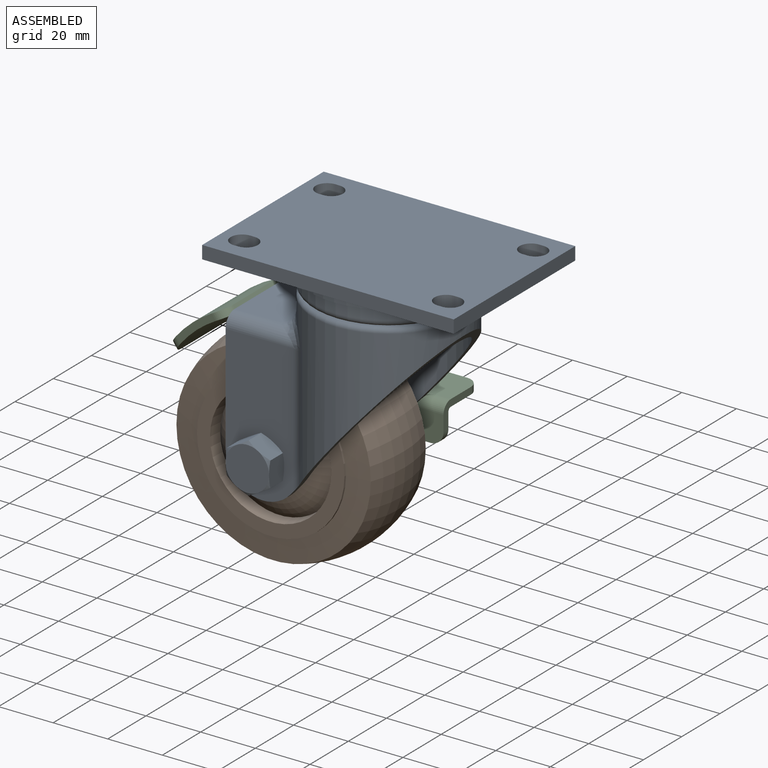
[diagram: assembled view]
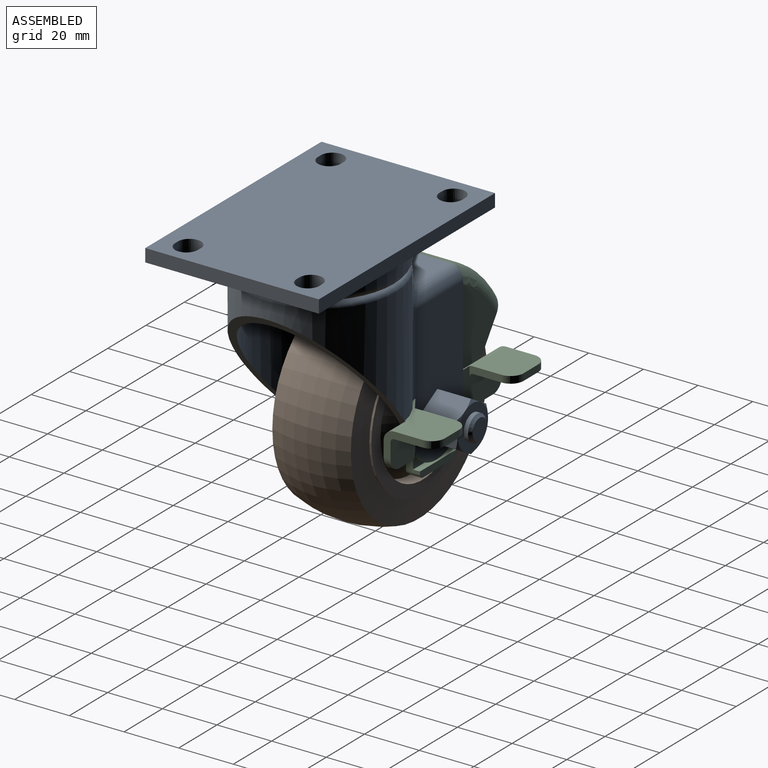
[diagram: assembled view, second angle]
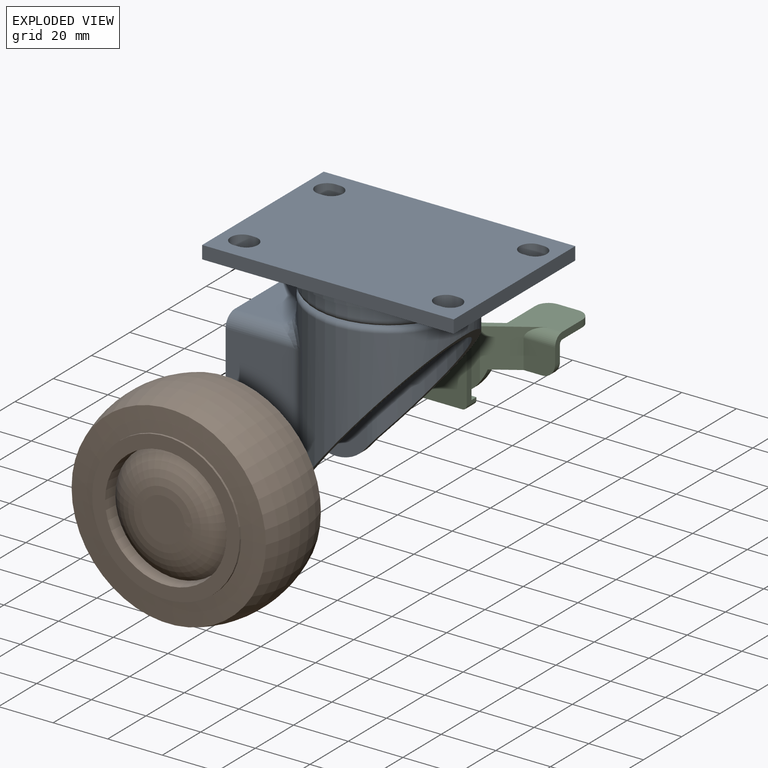
[diagram: exploded view]
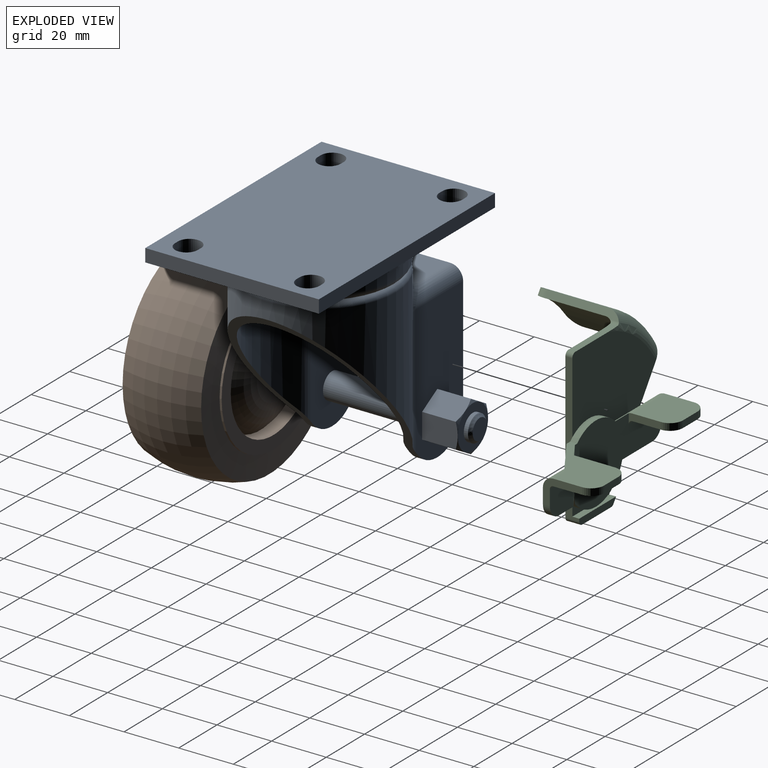
[diagram: exploded view, second angle]
ASSEMBLY  parts=3 mates=2
PART A: 91 faces, bbox 93.3x69.2x86.2 mm
  f0: torus R=25.41mm, axis (0,0,-1), area 630.9mm2, adj f1,f41
  f1: cylinder r=27.78mm len=55.56mm, axis (0,0,1), area 692.5mm2, adj f0,f90
  f2: cylinder r=28.54mm len=57.09mm, axis (0,0,1), area 570.8mm2, adj f68,f90
  f3: cone r=4.76mm half-angle=45deg, axis (0,-1,0), area 38.4mm2, adj f5,f67
  f4: cylinder r=4.76mm len=35.72mm, axis (0,-1,0), area 1068.8mm2, adj f55,f58
  f5: cylinder r=4.76mm len=9.53mm, axis (0,-1,0), area 45.6mm2, adj f3,f66
  f6: cylinder r=25mm len=56.24mm, axis (0,0,1), area 3413.6mm2, adj f48,f49,f50,f51,f52,f54,f57
  f7: torus R=25.8mm, axis (0,0,-1), area 529.1mm2, adj f8,f41
  f8: cylinder r=27.78mm len=59.08mm, axis (0,0,1), area 3788.7mm2, adj f7,f38,f40,f42,f43,f44,f48
  f9: plane 8.69x8.69mm, normal (-0.5,0,0.87), area 68.3mm2, adj f10,f14,f18,f19,f25,f26
  f10: plane 9.92x8.69mm, normal (-1,0,0), area 68.3mm2, adj f9,f11,f17,f18,f24,f25
  f11: plane 8.69x8.69mm, normal (-0.5,0,-0.87), area 68.3mm2, adj f10,f12,f16,f17,f23,f24
  f12: plane 8.69x8.69mm, normal (0.5,0,-0.87), area 68.3mm2, adj f11,f13,f15,f16,f22,f23
  f13: plane 9.92x8.69mm, normal (1,0,0), area 68.3mm2, adj f12,f14,f15,f20,f22,f27
  f14: plane 8.69x8.69mm, normal (0.5,0,0.87), area 68.3mm2, adj f9,f13,f19,f20,f26,f27
  f15: cone r=7.94mm half-angle=60deg, axis (0,1,0), area 6.2mm2, adj f12,f13,f21
  f16: cone r=7.94mm half-angle=60deg, axis (0,1,0), area 6.2mm2, adj f11,f12,f21
  f17: cone r=7.94mm half-angle=60deg, axis (0,1,0), area 6.2mm2, adj f10,f11,f21
  f18: cone r=7.94mm half-angle=60deg, axis (0,1,0), area 6.2mm2, adj f9,f10,f21
  f19: cone r=7.94mm half-angle=60deg, axis (0,1,0), area 6.2mm2, adj f9,f14,f21
  f20: cone r=7.94mm half-angle=60deg, axis (0,1,0), area 6.2mm2, adj f13,f14,f21
  f21: plane 15.88x15.88mm, normal (0,-1,0), area 197.9mm2, adj f15,f16,f17,f18,f19,f20
  f22: cone r=7.94mm half-angle=60deg, axis (0,-1,0), area 6.2mm2, adj f12,f13,f36
  f23: cone r=7.94mm half-angle=60deg, axis (0,-1,0), area 6.2mm2, adj f11,f12,f36
  f24: cone r=7.94mm half-angle=60deg, axis (0,-1,0), area 6.2mm2, adj f10,f11,f36
  f25: cone r=7.94mm half-angle=60deg, axis (0,-1,0), area 6.2mm2, adj f9,f10,f36
  f26: cone r=7.94mm half-angle=60deg, axis (0,-1,0), area 6.2mm2, adj f9,f14,f36
  f27: cone r=7.94mm half-angle=60deg, axis (0,-1,0), area 6.2mm2, adj f13,f14,f36
  f28: plane 13.77x9.92mm, normal (1,0,0), area 117.1mm2, adj f29,f33,f34,f61,f65
  f29: plane 13.77x8.69mm, normal (0.5,0,0.87), area 117.1mm2, adj f28,f30,f34,f64,f65
  f30: plane 13.77x8.69mm, normal (-0.5,0,0.87), area 117.1mm2, adj f29,f31,f34,f63,f64
  f31: plane 13.77x9.92mm, normal (-1,0,0), area 117.1mm2, adj f30,f32,f34,f62,f63
  f32: plane 13.77x8.69mm, normal (-0.5,0,-0.87), area 117.1mm2, adj f31,f33,f34,f60,f62
  f33: plane 13.77x8.69mm, normal (0.5,0,-0.87), area 117.1mm2, adj f28,f32,f34,f60,f61
  f34: plane 53.18x24.9mm, normal (0,1,0), area 1045.8mm2, adj f28,f29,f30,f31,f32,f33,f37,f38
  f35: plane 31.75x16.83mm, normal (0,0,1), area 445.8mm2, adj f37,f39,f43,f47
  f36: plane 53.18x24.9mm, normal (0,-1,0), area 1066.1mm2, adj f22,f23,f24,f25,f26,f27,f39,f40
  f37: cylinder r=4.76mm len=24.9mm, axis (1,0,0), area 156.1mm2, adj f34,f35,f42,f47
  f38: cylinder r=4.76mm len=47.11mm, axis (0,0,1), area 145.9mm2, adj f8,f34,f42,f48
  f39: cylinder r=4.76mm len=24.9mm, axis (-1,0,0), area 156.1mm2, adj f35,f36,f44,f47
  f40: cylinder r=4.76mm len=47.11mm, axis (0,0,1), area 145.9mm2, adj f8,f36,f44,f48
  f41: plane 51.6x51.6mm, normal (0,0,1), area 63.3mm2, adj f0,f7
  f42: bspline ~11.04x9.53mm, area 65.2mm2, adj f8,f37,f38,f43
  f43: torus R=32.54mm, axis (0,0,-1), area 225mm2, adj f8,f35,f42,f44
  f44: bspline ~11.04x9.53mm, area 65.2mm2, adj f8,f39,f40,f43
  f45: cylinder r=13.49mm len=23.78mm, axis (0,1,0), area 91.4mm2, adj f36,f47,f48,f58
  f46: cylinder r=13.49mm len=23.78mm, axis (0,1,0), area 91.4mm2, adj f34,f47,f48,f55
  f47: plane 44.45x41.28mm, normal (-1,0,0), area 338.2mm2, adj f34,f35,f36,f37,f39,f45,f46,f53
  f48: plane 59.2x56.81mm, normal (0.76,0,-0.65), area 553.9mm2, adj f6,f8,f34,f36,f38,f40,f45,f46
  f49: plane 50.01x50.01mm, normal (0,0,-1), area 1964mm2, adj f6
  f50: torus R=32.54mm, axis (0,0,-1), area 334.9mm2, adj f6,f51,f52,f59
  f51: bspline ~12.78x9.53mm, area 81mm2, adj f6,f50,f53,f54
  f52: bspline ~12.78x9.53mm, area 81mm2, adj f6,f50,f56,f57
  f53: cylinder r=1.98mm len=24.9mm, axis (1,0,0), area 65mm2, adj f47,f51,f55,f59
  f54: cylinder r=7.54mm len=47.11mm, axis (0,0,1), area 225.8mm2, adj f6,f48,f51,f55
  f55: plane 53.18x24.9mm, normal (0,-1,0), area 1192.8mm2, adj f4,f46,f47,f48,f53,f54
  f56: cylinder r=1.98mm len=24.9mm, axis (-1,0,0), area 65mm2, adj f47,f52,f58,f59
  f57: cylinder r=7.54mm len=47.11mm, axis (0,0,1), area 225.8mm2, adj f6,f48,f52,f58
  f58: plane 53.18x24.9mm, normal (0,1,0), area 1192.8mm2, adj f4,f45,f47,f48,f56,f57
  f59: plane 31.75x16.83mm, normal (0,0,-1), area 445.8mm2, adj f47,f50,f53,f56
  f60: cone r=7.94mm half-angle=60deg, axis (0,-1,0), area 6.2mm2, adj f32,f33,f66
  f61: cone r=7.94mm half-angle=60deg, axis (0,-1,0), area 6.2mm2, adj f28,f33,f66
  f62: cone r=7.94mm half-angle=60deg, axis (0,-1,0), area 6.2mm2, adj f31,f32,f66
  f63: cone r=7.94mm half-angle=60deg, axis (0,-1,0), area 6.2mm2, adj f30,f31,f66
  f64: cone r=7.94mm half-angle=60deg, axis (0,-1,0), area 6.2mm2, adj f29,f30,f66
  f65: cone r=7.94mm half-angle=60deg, axis (0,-1,0), area 6.2mm2, adj f28,f29,f66
  f66: plane 15.88x15.88mm, normal (0,1,0), area 126.7mm2, adj f5,f60,f61,f62,f63,f64,f65
  f67: plane 7.49x7.49mm, normal (0,1,0), area 44.1mm2, adj f3
  f68: plane 92.08x63.5mm, normal (0,0,-1), area 3013.3mm2, adj f2,f69,f70,f72,f73,f74,f75,f76
  f69: plane 63.5x4.76mm, normal (-1,0,0), area 302.4mm2, adj f68,f71,f72,f73
  f70: plane 63.5x4.76mm, normal (1,0,0), area 302.4mm2, adj f68,f71,f72,f73
  f71: plane 92.08x63.5mm, normal (0,0,1), area 5572.8mm2, adj f69,f70,f72,f73,f74,f75,f76,f77
  f72: plane 92.08x4.76mm, normal (0,-1,0), area 438.5mm2, adj f68,f69,f70,f71
  f73: plane 92.08x4.76mm, normal (0,1,0), area 438.5mm2, adj f68,f69,f70,f71
  f74: cylinder r=4.19mm len=8.38mm, axis (0,0,1), area 62.7mm2, adj f68,f71,f75,f77
  f75: plane 4.76x1.59mm, normal (0,-1,0), area 7.6mm2, adj f68,f71,f74,f76
  f76: cylinder r=4.19mm len=8.38mm, axis (0,0,1), area 62.7mm2, adj f68,f71,f75,f77
  f77: plane 4.76x1.59mm, normal (0,1,0), area 7.6mm2, adj f68,f71,f74,f76
  f78: cylinder r=4.19mm len=8.38mm, axis (0,0,1), area 62.7mm2, adj f68,f71,f79,f81
  f79: plane 4.76x1.59mm, normal (0,-1,0), area 7.6mm2, adj f68,f71,f78,f80
  f80: cylinder r=4.19mm len=8.38mm, axis (0,0,1), area 62.7mm2, adj f68,f71,f79,f81
  f81: plane 4.76x1.59mm, normal (0,1,0), area 7.6mm2, adj f68,f71,f78,f80
  f82: cylinder r=4.19mm len=8.38mm, axis (0,0,1), area 62.7mm2, adj f68,f71,f83,f85
  f83: plane 4.76x1.59mm, normal (0,1,0), area 7.6mm2, adj f68,f71,f82,f84
  f84: cylinder r=4.19mm len=8.38mm, axis (0,0,1), area 62.7mm2, adj f68,f71,f83,f85
  f85: plane 4.76x1.59mm, normal (0,-1,0), area 7.6mm2, adj f68,f71,f82,f84
  f86: cylinder r=4.19mm len=8.38mm, axis (0,0,1), area 62.7mm2, adj f68,f71,f87,f89
  f87: plane 4.76x1.59mm, normal (0,1,0), area 7.6mm2, adj f68,f71,f86,f88
  f88: cylinder r=4.19mm len=8.38mm, axis (0,0,1), area 62.7mm2, adj f68,f71,f87,f89
  f89: plane 4.76x1.59mm, normal (0,-1,0), area 7.6mm2, adj f68,f71,f86,f88
  f90: plane 57.09x57.09mm, normal (0,0,-1), area 134.8mm2, adj f1,f2
PART B: 13 faces, bbox 76.2x34.8x76.2 mm
  f0: cone r=35.56mm half-angle=85deg, axis (0,1,0), area 1690.9mm2, adj f1,f8
  f1: revolved ~76.2x76.2mm, area 6862.6mm2, adj f0,f2
  f2: cone r=26.99mm half-angle=85deg, axis (0,-1,0), area 1690.9mm2, adj f1,f3
  f3: cylinder r=26.99mm len=53.98mm, axis (0,-1,0), area 129.2mm2, adj f2,f12
  f4: cone r=21.81mm half-angle=5deg, axis (0,1,0), area 661.3mm2, adj f5,f12
  f5: torus R=7.94mm, axis (0,-1,0), area 1511.5mm2, adj f4,f11
  f6: torus R=7.94mm, axis (0,-1,0), area 1511.5mm2, adj f7,f10
  f7: cone r=22.23mm half-angle=5deg, axis (0,-1,0), area 661.3mm2, adj f6,f9
  f8: cylinder r=26.99mm len=53.98mm, axis (0,-1,0), area 129.2mm2, adj f0,f9
  f9: plane 53.98x53.98mm, normal (0,-1,0), area 736.3mm2, adj f7,f8
  f10: plane 15.88x15.88mm, normal (0,-1,0), area 197.9mm2, adj f6
  f11: plane 15.88x15.88mm, normal (0,1,0), area 197.9mm2, adj f5
  f12: plane 53.98x53.98mm, normal (0,1,0), area 736.3mm2, adj f3,f4
PART C: 52 faces, bbox 80x61.4x68.1 mm
  f0: plane 26.92x10.96mm, normal (0,1,0), area 66.6mm2, adj f3,f5,f28,f29,f50
  f1: plane 43.72x32.48mm, normal (0,1,0), area 1056.5mm2, adj f3,f5,f8,f16,f18,f24,f49
  f2: plane 56.46x43.72mm, normal (0,-1,0), area 1806mm2, adj f3,f4,f5,f8,f14,f15,f16,f17
  f3: plane 53.28x5.08mm, normal (1,0,0), area 137.8mm2, adj f0,f1,f2,f15,f16,f19,f50,f51
  f4: plane 15.05x5.08mm, normal (0,0,-1), area 76.4mm2, adj f2,f14,f15,f51
  f5: plane 43.1x31.65mm, normal (-0.82,0,-0.57), area 200.4mm2, adj f0,f1,f2,f6,f9,f12,f14,f17
  f6: cylinder r=46.04mm len=26.99mm, axis (0,-1,0), area 702.2mm2, adj f5,f7,f10,f11,f12,f18
  f7: plane 27.61x2.89mm, normal (0.82,0,0.57), area 68.4mm2, adj f6,f9,f11,f13,f17,f18
  f8: plane 22.59x3.18mm, normal (0,0,1), area 57mm2, adj f1,f2,f13,f16,f17,f18
  f9: cylinder r=43.5mm len=26.99mm, axis (0,1,0), area 703.8mm2, adj f5,f7,f10,f11,f12,f17
  f10: plane 14.44x13.06mm, normal (0,-1,0), area 43.3mm2, adj f6,f9,f11,f12
  f11: cylinder r=4.76mm len=5.8mm, axis (0.57,0,-0.82), area 19.3mm2, adj f6,f7,f9,f10
  f12: cylinder r=4.76mm len=6.41mm, axis (-0.57,0,0.82), area 20.2mm2, adj f5,f6,f9,f10
  f13: cylinder r=1.59mm len=3.75mm, axis (0,1,0), area 4.6mm2, adj f7,f8,f17,f18
  f14: cylinder r=1.59mm len=5.08mm, axis (0,-1,0), area 7.7mm2, adj f2,f4,f5,f51
  f15: cylinder r=1.59mm len=5.08mm, axis (0,-1,0), area 12.7mm2, adj f2,f3,f4,f51
  f16: cylinder r=1.59mm len=2.54mm, axis (0,-1,0), area 6.3mm2, adj f1,f2,f3,f8
  f17: torus R=40.32mm, axis (0,1,0), area 140.8mm2, adj f2,f5,f7,f8,f9,f13
  f18: torus R=40.32mm, axis (0,1,0), area 251mm2, adj f1,f5,f6,f7,f8,f13
  f19: plane 22.62x3.03mm, normal (0,-1,0), area 61.8mm2, adj f3,f24,f25,f28,f33
  f20: plane 16.11x10.48mm, normal (0,-1,0), area 125.4mm2, adj f5,f29,f30,f40,f49
  f21: plane 17.15x15.24mm, normal (0,0,-1), area 251.6mm2, adj f23,f30,f38,f42,f43,f46
  f22: plane 7.62x2.54mm, normal (0,1,0), area 19.4mm2, adj f25,f37,f44,f45
  f23: plane 7.62x2.54mm, normal (0,1,0), area 19.4mm2, adj f21,f31,f42,f43
  f24: cylinder r=14.29mm len=22.59mm, axis (0,-1,0), area 61.8mm2, adj f1,f19,f25,f36,f49
  f25: plane 26.19x24.41mm, normal (0,0,1), area 315.8mm2, adj f19,f22,f24,f26,f33,f35,f36,f39
  f26: plane 14.29x9.53mm, normal (1,0,0), area 51.3mm2, adj f25,f32,f34,f37,f41,f45,f47,f48
  f27: plane 15.8x8.41mm, normal (0,0,-1), area 44.4mm2, adj f28,f32,f33,f34,f35,f41
  f28: cylinder r=14.29mm len=27.45mm, axis (0,-1,0), area 95.8mm2, adj f0,f19,f27,f29,f33,f35,f36
  f29: plane 15.8x2.54mm, normal (0,0,-1), area 40.1mm2, adj f0,f20,f28,f36,f40
  f30: plane 14.29x9.53mm, normal (-1,0,0), area 51.3mm2, adj f20,f21,f31,f36,f40,f42,f46,f49
  f31: plane 17.15x15.24mm, normal (0,0,1), area 251.6mm2, adj f23,f30,f38,f42,f43,f49
  f32: plane 11.51x10.48mm, normal (0,-1,0), area 115.7mm2, adj f26,f27,f33,f41,f48
  f33: plane 20.91x19.37mm, normal (0.54,-0.84,0), area 198.9mm2, adj f19,f25,f27,f28,f32,f48
  f34: plane 12.26x10.48mm, normal (0,1,0), area 123.6mm2, adj f26,f27,f35,f41,f47
  f35: plane 20.25x13.8mm, normal (-0.54,0.84,0), area 183.2mm2, adj f25,f27,f28,f34,f36,f37,f39,f47
  f36: plane 45.3x28.58mm, normal (0,1,0), area 830.1mm2, adj f24,f25,f28,f29,f30,f35,f38,f40
  f37: plane 19.68x17.15mm, normal (0,0,-1), area 266.7mm2, adj f22,f26,f35,f39,f44,f45,f47
  f38: plane 11.75x3.81mm, normal (1,0,0), area 30.1mm2, adj f21,f31,f36,f43,f46,f49
  f39: plane 14.91x2.54mm, normal (-1,0,0), area 37.9mm2, adj f25,f35,f37,f44
  f40: cylinder r=4.76mm len=4.76mm, axis (0,-1,0), area 19mm2, adj f20,f29,f30,f36
  f41: cylinder r=4.76mm len=4.76mm, axis (0,-1,0), area 19mm2, adj f26,f27,f32,f34
  f42: cylinder r=4.76mm len=4.76mm, axis (0,0,1), area 19mm2, adj f21,f23,f30,f31
  f43: cylinder r=4.76mm len=4.76mm, axis (0,0,-1), area 19mm2, adj f21,f23,f31,f38
  f44: cylinder r=4.76mm len=4.76mm, axis (0,0,1), area 19mm2, adj f22,f25,f37,f39
  f45: cylinder r=4.76mm len=4.76mm, axis (0,0,1), area 19mm2, adj f22,f25,f26,f37
  f46: cylinder r=1.27mm len=17.15mm, axis (1,0,0), area 34.2mm2, adj f21,f30,f36,f38
  f47: cylinder r=1.27mm len=12.26mm, axis (1,0,0), area 22.5mm2, adj f26,f34,f35,f37
  f48: cylinder r=3.81mm len=11.51mm, axis (1,0,0), area 51.3mm2, adj f25,f26,f32,f33
  f49: cylinder r=3.81mm len=24.19mm, axis (1,0,0), area 129.5mm2, adj f1,f20,f24,f30,f31,f36,f38
  f50: plane 19.24x2.54mm, normal (0,0,1), area 48.9mm2, adj f0,f3,f5,f51
  f51: plane 19.24x2.54mm, normal (0,1,0), area 46mm2, adj f3,f4,f5,f14,f15,f50
PLACE A t=(46.16,-21.94,25.36)mm
PLACE B t=(46.16,-22.4,25.36)mm
PLACE C t=(46.16,-27.26,25.36)mm
MATE fastened A.f3 <-> B.f0  axis (0,1,0) through (14.41,-39.8,-46.08)mm
MATE fastened C.f6 <-> A.f3  axis (0,1,0) through (14.41,-1.54,-46.08)mm
